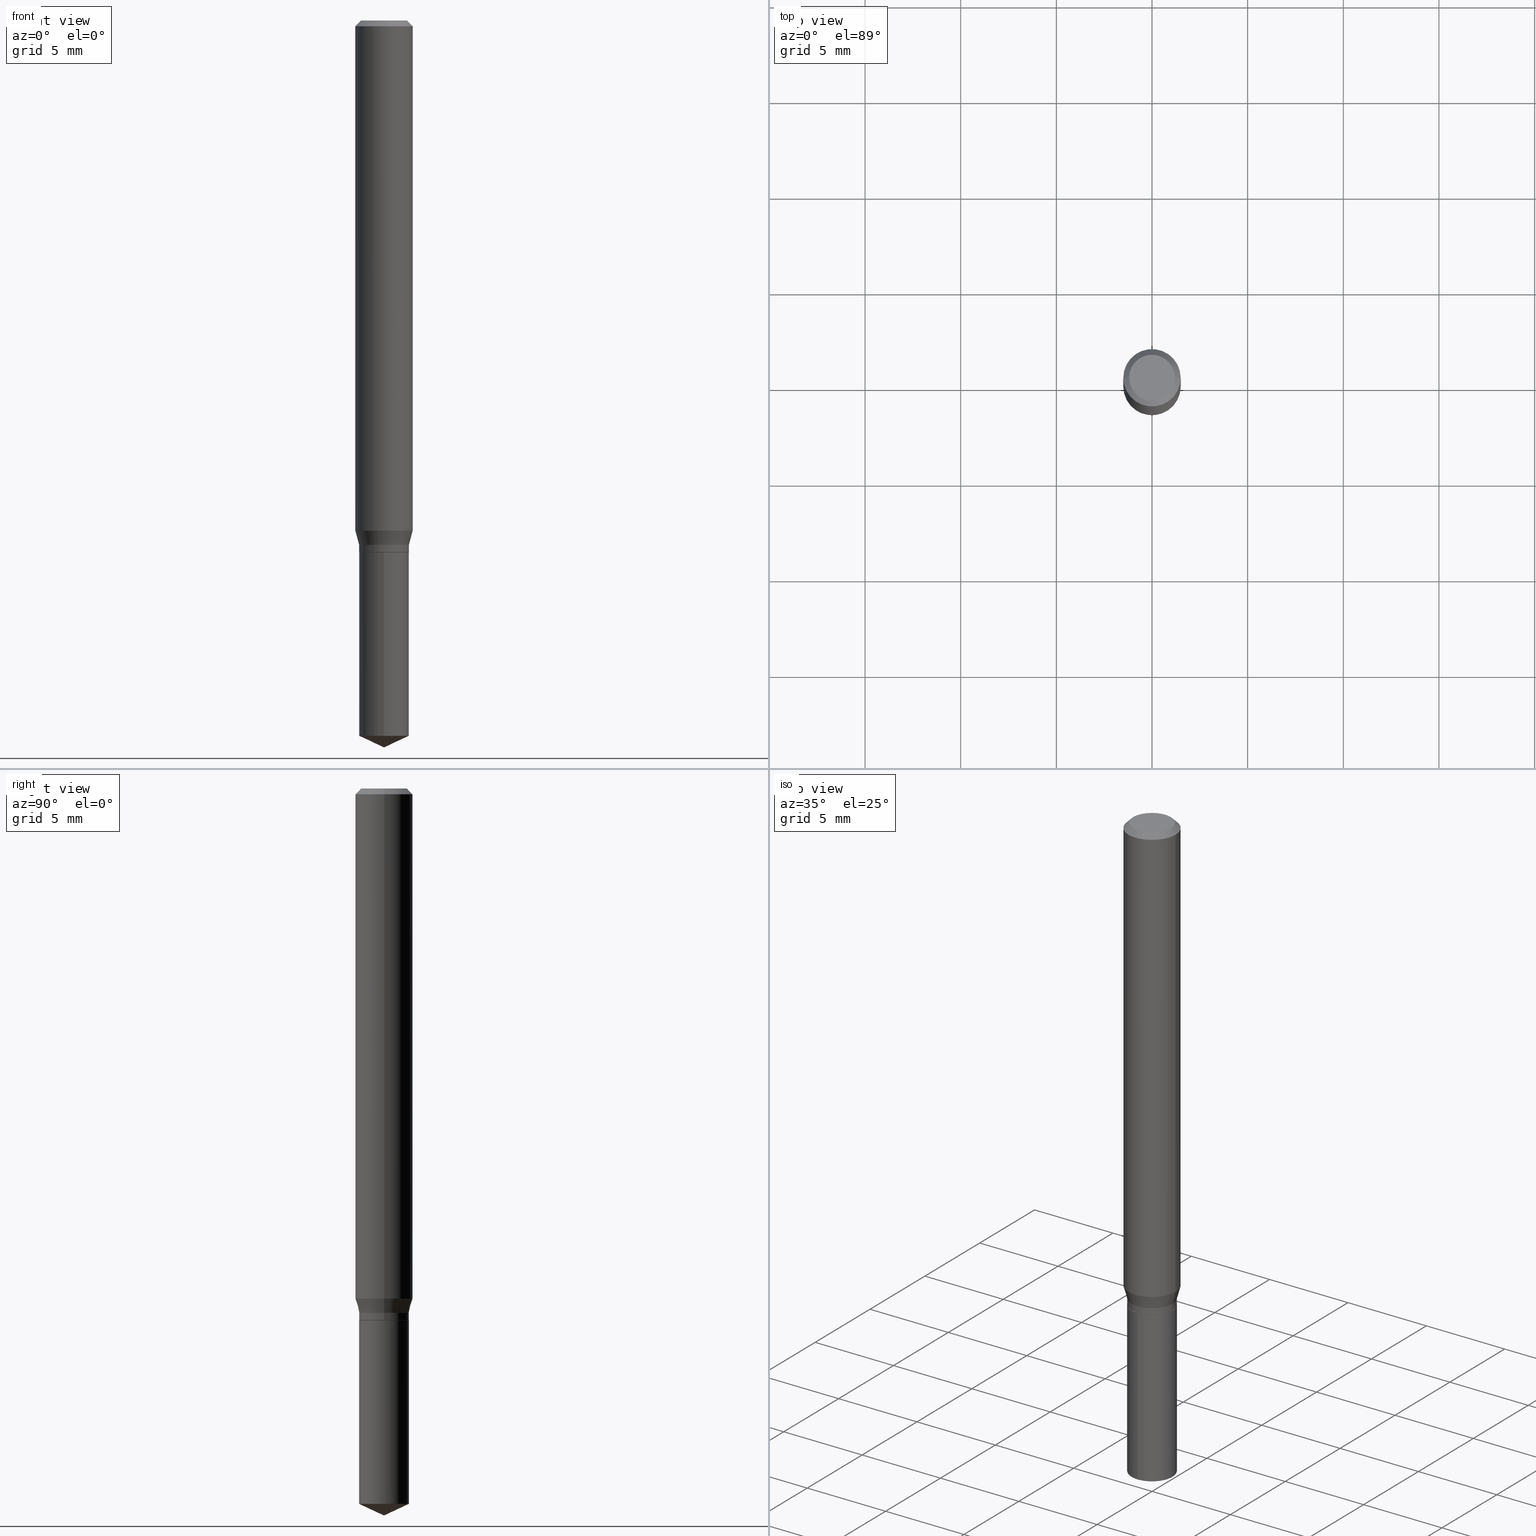
[diagram: canonical four-view strip — front | top / right | iso, engineering-drawing reading convention]
A machine part, canonical four-view strip (front | top / right | iso — engineering-drawing reading convention). The complete STEP part file that produces these views, byte-faithful:
ISO-10303-21;
HEADER;
FILE_DESCRIPTION (( 'STEP AP203' ),
    '1' );
FILE_NAME ('08393.STEP',
    '2024-04-24T14:51:42',
    ( '' ),
    ( '' ),
    'SwSTEP 2.0',
    'SolidWorks 2023',
    '' );
FILE_SCHEMA (( 'CONFIG_CONTROL_DESIGN' ));
ENDSEC;

DATA;
#1 = AXIS2_PLACEMENT_3D ( 'NONE', #146, #406, #62 ) ;
#2 = CARTESIAN_POINT ( 'NONE',  ( 3.600238699489957848E-29, -5.140306042266869931E-15, -1.472225047902464112 ) ) ;
#3 = ADVANCED_FACE ( 'NONE', ( #38 ), #162, .T. ) ;
#4 = VERTEX_POINT ( 'NONE', #310 ) ;
#5 = CC_DESIGN_PERSON_AND_ORGANIZATION_ASSIGNMENT ( #21, #297, ( #110 ) ) ;
#6 = CARTESIAN_POINT ( 'NONE',  ( 3.637978807092073044E-16, 0.05119999999999617912, -1.094500000000000028 ) ) ;
#7 = ORIENTED_EDGE ( 'NONE', *, *, #210, .F. ) ;
#8 = DIRECTION ( 'NONE',  ( 1.000000000000000000, -6.982962677686266711E-15, 0.000000000000000000 ) ) ;
#9 = VERTEX_POINT ( 'NONE', #40 ) ;
#10 = AXIS2_PLACEMENT_3D ( 'NONE', #322, #392, #201 ) ;
#11 = LINE ( 'NONE', #49, #438 ) ;
#12 = AXIS2_PLACEMENT_3D ( 'NONE', #2, #237, #156 ) ;
#13 = ORIENTED_EDGE ( 'NONE', *, *, #464, .T. ) ;
#14 = CARTESIAN_POINT ( 'NONE',  ( 0.000000000000000000, 0.000000000000000000, 0.000000000000000000 ) ) ;
#15 = DIRECTION ( 'NONE',  ( -2.445468806185136597E-29, 3.491481338843145583E-15, 1.000000000000000000 ) ) ;
#16 = CIRCLE ( 'NONE', #163, 0.05905000000000013710 ) ;
#17 = PERSON_AND_ORGANIZATION ( #311, #246 ) ;
#18 = VECTOR ( 'NONE', #442, 39.37007874015748143 ) ;
#19 = CARTESIAN_POINT ( 'NONE',  ( -0.05904999999999999832, -1.433726204142650015E-15, -0.01181000000000007044 ) ) ;
#20 = CIRCLE ( 'NONE', #305, 0.05120000000000000939 ) ;
#21 = PERSON_AND_ORGANIZATION ( #311, #246 ) ;
#22 = DIRECTION ( 'NONE',  ( -2.445468806185136877E-29, 3.491481338843145188E-15, 1.000000000000000000 ) ) ;
#23 = ORIENTED_EDGE ( 'NONE', *, *, #190, .T. ) ;
#24 = LINE ( 'NONE', #335, #293 ) ;
#25 = ORIENTED_EDGE ( 'NONE', *, *, #274, .T. ) ;
#26 = CARTESIAN_POINT ( 'NONE',  ( 2.675342873966538993E-29, -3.819680584694400481E-15, -1.093999999999999861 ) ) ;
#27 = CIRCLE ( 'NONE', #132, 0.05119999999999999551 ) ;
#28 = EDGE_LOOP ( 'NONE', ( #66, #149 ) ) ;
#29 = CIRCLE ( 'NONE', #102, 0.05119999999999999551 ) ;
#30 = CARTESIAN_POINT ( 'NONE',  ( -0.05119999999999999551, -3.429871168010848223E-15, -1.093999999999999861 ) ) ;
#31 = ORIENTED_EDGE ( 'NONE', *, *, #385, .T. ) ;
#32 = CARTESIAN_POINT ( 'NONE',  ( -0.05905000000000013710, -3.245793499139903371E-15, -1.049803401160583904 ) ) ;
#33 = VERTEX_POINT ( 'NONE', #126 ) ;
#34 = CARTESIAN_POINT ( 'NONE',  ( 2.888098660104663766E-31, -4.123439461173779647E-17, -0.01181000000000007044 ) ) ;
#35 = ORIENTED_EDGE ( 'NONE', *, *, #268, .F. ) ;
#36 = DIRECTION ( 'NONE',  ( 1.000000000000000000, -6.982962677686264344E-15, 0.000000000000000000 ) ) ;
#37 = EDGE_CURVE ( 'NONE', #191, #33, #200, .T. ) ;
#38 = FACE_OUTER_BOUND ( 'NONE', #281, .T. ) ;
#39 = DIRECTION ( 'NONE',  ( 1.000000000000000000, -6.982962677686265133E-15, 0.000000000000000000 ) ) ;
#40 = CARTESIAN_POINT ( 'NONE',  ( 3.658500592690254185E-29, -5.223841933215297403E-15, -1.496099999999999985 ) ) ;
#41 = DIRECTION ( 'NONE',  ( 1.000000000000000000, -6.982962677686263555E-15, 0.000000000000000000 ) ) ;
#42 = CARTESIAN_POINT ( 'NONE',  ( 8.265746106709734507E-48, -1.180129479067563789E-33, -3.380025165646692144E-19 ) ) ;
#43 = VECTOR ( 'NONE', #359, 39.37007874015748143 ) ;
#44 =( CONVERSION_BASED_UNIT ( 'INCH', #127 ) LENGTH_UNIT ( ) NAMED_UNIT ( #448 ) );
#45 = EDGE_CURVE ( 'NONE', #421, #33, #431, .T. ) ;
#46 = DIRECTION ( 'NONE',  ( 1.000000000000000000, -6.982962677686266711E-15, 4.876176775795936353E-29 ) ) ;
#47 = DIRECTION ( 'NONE',  ( 1.000000000000000000, -6.982962677686265133E-15, 0.000000000000000000 ) ) ;
#48 = ORIENTED_EDGE ( 'NONE', *, *, #453, .T. ) ;
#49 = CARTESIAN_POINT ( 'NONE',  ( -0.05905000000000006771, 4.195754854663396409E-16, -2.904631170795525045E-30 ) ) ;
#50 = APPROVAL ( #258, 'UNSPECIFIED' ) ;
#51 = EDGE_CURVE ( 'NONE', #471, #4, #27, .T. ) ;
#52 = DIRECTION ( 'NONE',  ( 1.000000000000000000, 0.000000000000000000, 0.000000000000000000 ) ) ;
#53 = VECTOR ( 'NONE', #135, 39.37007874015748143 ) ;
#54 = PERSON_AND_ORGANIZATION ( #311, #246 ) ;
#55 = EDGE_CURVE ( 'NONE', #165, #76, #122, .T. ) ;
#56 = SHAPE_DEFINITION_REPRESENTATION ( #178, #104 ) ;
#57 = CARTESIAN_POINT ( 'NONE',  ( 2.888098660104663766E-31, -4.123439461173779647E-17, -0.01181000000000007044 ) ) ;
#58 = DIRECTION ( 'NONE',  ( -1.000000000000000000, 6.982962677686266711E-15, 0.000000000000000000 ) ) ;
#59 = CIRCLE ( 'NONE', #124, 0.05904999999999999832 ) ;
#60 = ADVANCED_FACE ( 'NONE', ( #128 ), #315, .T. ) ;
#61 = DATE_TIME_ROLE ( 'creation_date' ) ;
#62 = DIRECTION ( 'NONE',  ( -6.982962677686265133E-15, -1.000000000000000000, 2.667820306312756424E-15 ) ) ;
#63 = EDGE_LOOP ( 'NONE', ( #388, #261, #23, #341 ) ) ;
#64 = CALENDAR_DATE ( 2024, 24, 4 ) ;
#65 = DIRECTION ( 'NONE',  ( -2.445358326776455790E-29, 3.491639551644474585E-15, 1.000000000000000000 ) ) ;
#66 = ORIENTED_EDGE ( 'NONE', *, *, #422, .T. ) ;
#67 = CARTESIAN_POINT ( 'NONE',  ( 3.600238699489957848E-29, -5.140306042266869931E-15, -1.472225047902464112 ) ) ;
#68 = UNCERTAINTY_MEASURE_WITH_UNIT (LENGTH_MEASURE( 1.000000000000000082E-05 ), #44, 'distance_accuracy_value', 'NONE');
#69 = ORIENTED_EDGE ( 'NONE', *, *, #55, .F. ) ;
#70 = DIRECTION ( 'NONE',  ( 6.439704144417030353E-15, 0.9063077870366521571, 0.4226182617406946673 ) ) ;
#71 = ORIENTED_EDGE ( 'NONE', *, *, #155, .F. ) ;
#72 = ADVANCED_FACE ( 'NONE', ( #432 ), #85, .T. ) ;
#73 = DIRECTION ( 'NONE',  ( -2.445468806185136597E-29, 3.491481338843145583E-15, 1.000000000000000000 ) ) ;
#74 = EDGE_LOOP ( 'NONE', ( #145, #354, #35, #7 ) ) ;
#75 = DIRECTION ( 'NONE',  ( -6.982962677686265133E-15, -1.000000000000000000, 2.667820306312756424E-15 ) ) ;
#76 = VERTEX_POINT ( 'NONE', #459 ) ;
#77 = CIRCLE ( 'NONE', #286, 0.05119999999999999551 ) ;
#78 = CARTESIAN_POINT ( 'NONE',  ( -3.575276890975101258E-16, -0.05120000000000383272, -1.094499999999999806 ) ) ;
#79 = APPLICATION_CONTEXT ( 'configuration controlled 3d designs of mechanical parts and assemblies' ) ;
#80 = LINE ( 'NONE', #324, #452 ) ;
#81 = DIRECTION ( 'NONE',  ( -6.982962677686266711E-15, -1.000000000000000000, 3.520397390770453475E-15 ) ) ;
#82 = ADVANCED_FACE ( 'NONE', ( #203 ), #233, .T. ) ;
#83 = DIRECTION ( 'NONE',  ( 1.000000000000000000, -6.982962677686265133E-15, 0.000000000000000000 ) ) ;
#84 = APPROVAL_PERSON_ORGANIZATION ( #17, #433, #105 ) ;
#85 = CYLINDRICAL_SURFACE ( 'NONE', #474, 0.05905000000000006771 ) ;
#86 = CLOSED_SHELL ( 'NONE', ( #266, #60, #313, #91, #265 ) ) ;
#87 = AXIS2_PLACEMENT_3D ( 'NONE', #215, #484, #98 ) ;
#88 = DIRECTION ( 'NONE',  ( -6.982962677686265133E-15, -1.000000000000000000, 2.667820306312756424E-15 ) ) ;
#89 = CC_DESIGN_PERSON_AND_ORGANIZATION_ASSIGNMENT ( #54, #409, ( #469 ) ) ;
#90 = CARTESIAN_POINT ( 'NONE',  ( 0.000000000000000000, 0.000000000000000000, 0.000000000000000000 ) ) ;
#91 = ADVANCED_FACE ( 'NONE', ( #129 ), #429, .T. ) ;
#92 = ORIENTED_EDGE ( 'NONE', *, *, #155, .T. ) ;
#93 = AXIS2_PLACEMENT_3D ( 'NONE', #344, #342, #458 ) ;
#94 = MANIFOLD_SOLID_BREP ( 'Body-Move/Copy2[2]', #152 ) ;
#95 = PERSON_AND_ORGANIZATION ( #311, #246 ) ;
#96 = DIRECTION ( 'NONE',  ( -6.328713451373374901E-15, -0.9063077870366492705, 0.4226182617407009956 ) ) ;
#97 = APPROVAL_DATE_TIME ( #250, #50 ) ;
#98 = DIRECTION ( 'NONE',  ( 1.000000000000000000, -6.982962677686263555E-15, 0.000000000000000000 ) ) ;
#99 = LOCAL_TIME ( 10, 51, 42.00000000000000000, #444 ) ;
#100 = DATE_AND_TIME ( #364, #301 ) ;
#101 = CARTESIAN_POINT ( 'NONE',  ( 2.676565608369631794E-29, -3.821426325363822773E-15, -1.094499999999999806 ) ) ;
#102 = AXIS2_PLACEMENT_3D ( 'NONE', #26, #180, #221 ) ;
#103 = ORIENTED_EDGE ( 'NONE', *, *, #414, .F. ) ;
#104 = ADVANCED_BREP_SHAPE_REPRESENTATION ( '08393', ( #254, #94, #353 ), #284 ) ;
#105 = APPROVAL_ROLE ( '' ) ;
#106 = DIRECTION ( 'NONE',  ( 1.000000000000000000, -6.982962677686263555E-15, 0.000000000000000000 ) ) ;
#107 = ORIENTED_EDGE ( 'NONE', *, *, #292, .F. ) ;
#108 = EDGE_CURVE ( 'NONE', #76, #191, #80, .T. ) ;
#109 = FACE_OUTER_BOUND ( 'NONE', #28, .T. ) ;
#110 = PRODUCT ( '08393', '08393', '', ( #209 ) ) ;
#111 = CC_DESIGN_APPROVAL ( #433, ( #222 ) ) ;
#112 = ORIENTED_EDGE ( 'NONE', *, *, #131, .T. ) ;
#113 = PLANE ( 'NONE',  #170 ) ;
#114 = ORIENTED_EDGE ( 'NONE', *, *, #167, .F. ) ;
#115 = VECTOR ( 'NONE', #445, 39.37007874015748143 ) ;
#116 = FACE_OUTER_BOUND ( 'NONE', #295, .T. ) ;
#117 = ORIENTED_EDGE ( 'NONE', *, *, #268, .T. ) ;
#118 = DIRECTION ( 'NONE',  ( 2.445468806185136597E-29, -3.491481338843145583E-15, -1.000000000000000000 ) ) ;
#119 = ORIENTED_EDGE ( 'NONE', *, *, #340, .T. ) ;
#120 = DIRECTION ( 'NONE',  ( -1.000000000000000000, 6.982962677686266711E-15, 0.000000000000000000 ) ) ;
#121 = EDGE_CURVE ( 'NONE', #165, #33, #217, .T. ) ;
#122 = CIRCLE ( 'NONE', #141, 0.04724000000000000421 ) ;
#123 = DIRECTION ( 'NONE',  ( -2.445468806185136597E-29, 3.491481338843145583E-15, 1.000000000000000000 ) ) ;
#124 = AXIS2_PLACEMENT_3D ( 'NONE', #456, #73, #8 ) ;
#125 = CARTESIAN_POINT ( 'NONE',  ( 2.675342873966538993E-29, -3.819680584694400481E-15, -1.093999999999999861 ) ) ;
#126 = CARTESIAN_POINT ( 'NONE',  ( 0.05904999999999999832, -4.535783407291118600E-16, -0.01181000000000007044 ) ) ;
#127 = LENGTH_MEASURE_WITH_UNIT ( LENGTH_MEASURE( 0.02539999999999999897 ), #245 );
#128 = FACE_OUTER_BOUND ( 'NONE', #487, .T. ) ;
#129 = FACE_OUTER_BOUND ( 'NONE', #415, .T. ) ;
#130 = DIRECTION ( 'NONE',  ( -2.445468806185136597E-29, 3.491481338843145583E-15, 1.000000000000000000 ) ) ;
#131 = EDGE_CURVE ( 'NONE', #271, #159, #192, .T. ) ;
#132 = AXIS2_PLACEMENT_3D ( 'NONE', #319, #15, #83 ) ;
#133 = PERSON_AND_ORGANIZATION_ROLE ( 'classification_officer' ) ;
#134 = AXIS2_PLACEMENT_3D ( 'NONE', #67, #338, #291 ) ;
#135 = DIRECTION ( 'NONE',  ( -2.445468806185136877E-29, 3.491481338843145188E-15, 1.000000000000000000 ) ) ;
#136 = ADVANCED_FACE ( 'NONE', ( #262 ), #202, .T. ) ;
#137 = CALENDAR_DATE ( 2024, 24, 4 ) ;
#138 = DIRECTION ( 'NONE',  ( 2.438088387897960049E-29, -3.491481338843145188E-15, -1.000000000000000000 ) ) ;
#139 = PERSON_AND_ORGANIZATION ( #311, #246 ) ;
#140 = CARTESIAN_POINT ( 'NONE',  ( -0.05119999999999999551, 3.637978807091712633E-16, -2.518494766210511577E-30 ) ) ;
#141 = AXIS2_PLACEMENT_3D ( 'NONE', #42, #123, #470 ) ;
#142 = DIRECTION ( 'NONE',  ( 2.445468806185136597E-29, -3.491481338843145583E-15, -1.000000000000000000 ) ) ;
#143 = AXIS2_PLACEMENT_3D ( 'NONE', #346, #193, #36 ) ;
#144 = VECTOR ( 'NONE', #413, 39.37007874015748143 ) ;
#145 = ORIENTED_EDGE ( 'NONE', *, *, #375, .T. ) ;
#146 = CARTESIAN_POINT ( 'NONE',  ( 2.676565608369631794E-29, -3.821426325363822773E-15, -1.094499999999999806 ) ) ;
#147 = ORIENTED_EDGE ( 'NONE', *, *, #455, .T. ) ;
#148 = DIRECTION ( 'NONE',  ( -2.445468806185136597E-29, 3.491481338843145583E-15, 1.000000000000000000 ) ) ;
#149 = ORIENTED_EDGE ( 'NONE', *, *, #55, .T. ) ;
#150 = LOCAL_TIME ( 10, 51, 42.00000000000000000, #480 ) ;
#151 = DIRECTION ( 'NONE',  ( -2.438088387897960049E-29, 3.491481338843145188E-15, 1.000000000000000000 ) ) ;
#152 = CLOSED_SHELL ( 'NONE', ( #161, #327, #72, #320, #3, #82, #476, #253, #136, #251, #399, #488 ) ) ;
#153 = ORIENTED_EDGE ( 'NONE', *, *, #219, .T. ) ;
#154 = AXIS2_PLACEMENT_3D ( 'NONE', #420, #386, #350 ) ;
#155 = EDGE_CURVE ( 'NONE', #373, #468, #378, .T. ) ;
#156 = DIRECTION ( 'NONE',  ( -6.982962677686265133E-15, -1.000000000000000000, 5.335640612625512847E-15 ) ) ;
#157 = ORIENTED_EDGE ( 'NONE', *, *, #45, .F. ) ;
#158 = DIRECTION ( 'NONE',  ( -0.2588190451025214611, 5.211531920934550253E-15, 0.9659258262890679791 ) ) ;
#159 = VERTEX_POINT ( 'NONE', #252 ) ;
#160 = CARTESIAN_POINT ( 'NONE',  ( 2.638905388754380459E-29, -3.767657512745638097E-15, -1.079099999999999948 ) ) ;
#161 = ADVANCED_FACE ( 'NONE', ( #182 ), #270, .T. ) ;
#162 = CYLINDRICAL_SURFACE ( 'NONE', #303, 0.05119999999999999551 ) ;
#163 = AXIS2_PLACEMENT_3D ( 'NONE', #389, #466, #436 ) ;
#164 = CARTESIAN_POINT ( 'NONE',  ( -0.05119999999999999551, -3.429871168010848223E-15, -1.079099999999999948 ) ) ;
#165 = VERTEX_POINT ( 'NONE', #371 ) ;
#166 = APPLICATION_PROTOCOL_DEFINITION ( 'international standard', 'config_control_design', 1994, #204 ) ;
#167 = EDGE_CURVE ( 'NONE', #159, #449, #24, .T. ) ;
#168 = ORIENTED_EDGE ( 'NONE', *, *, #190, .F. ) ;
#169 = CARTESIAN_POINT ( 'NONE',  ( 0.05119999999999999551, -3.575276890975368485E-16, 2.496602509207519033E-30 ) ) ;
#170 = AXIS2_PLACEMENT_3D ( 'NONE', #489, #151, #275 ) ;
#171 = EDGE_CURVE ( 'NONE', #373, #384, #177, .T. ) ;
#172 = PERSON_AND_ORGANIZATION_ROLE ( 'design_supplier' ) ;
#173 = LOCAL_TIME ( 10, 51, 42.00000000000000000, #249 ) ;
#174 = EDGE_CURVE ( 'NONE', #194, #449, #330, .T. ) ;
#175 = AXIS2_PLACEMENT_3D ( 'NONE', #351, #356, #278 ) ;
#176 = DATE_AND_TIME ( #137, #150 ) ;
#177 = LINE ( 'NONE', #481, #362 ) ;
#178 = PRODUCT_DEFINITION_SHAPE ( 'NONE', 'NONE',  #469 ) ;
#179 = COORDINATED_UNIVERSAL_TIME_OFFSET ( 5, 0, .BEHIND. ) ;
#180 = DIRECTION ( 'NONE',  ( -2.445468806185136597E-29, 3.491481338843145583E-15, 1.000000000000000000 ) ) ;
#181 = APPROVAL_ROLE ( '' ) ;
#182 = FACE_OUTER_BOUND ( 'NONE', #74, .T. ) ;
#183 = ORIENTED_EDGE ( 'NONE', *, *, #464, .F. ) ;
#184 = CARTESIAN_POINT ( 'NONE',  ( 0.05904999999999999832, -4.463468013801466955E-16, -0.01181000000000007044 ) ) ;
#185 = CONICAL_SURFACE ( 'NONE', #361, 84.42940631927434936, 1.134464013796316006 ) ;
#186 = EDGE_LOOP ( 'NONE', ( #240, #92, #318, #397 ) ) ;
#187 = CARTESIAN_POINT ( 'NONE',  ( -0.05119999999999999551, -3.403859632036467031E-15, -1.079099999999999948 ) ) ;
#188 = ORIENTED_EDGE ( 'NONE', *, *, #414, .T. ) ;
#189 = FACE_OUTER_BOUND ( 'NONE', #267, .T. ) ;
#190 = EDGE_CURVE ( 'NONE', #483, #4, #379, .T. ) ;
#191 = VERTEX_POINT ( 'NONE', #19 ) ;
#192 = CIRCLE ( 'NONE', #134, 0.05120000000000000939 ) ;
#193 = DIRECTION ( 'NONE',  ( -2.445468806185136597E-29, 3.491481338843145583E-15, 1.000000000000000000 ) ) ;
#194 = VERTEX_POINT ( 'NONE', #472 ) ;
#195 = DIRECTION ( 'NONE',  ( -2.445358326776455510E-29, 3.491639551644474585E-15, 1.000000000000000000 ) ) ;
#196 = CARTESIAN_POINT ( 'NONE',  ( 0.05905000000000006771, -4.123439461173745257E-16, 2.879382386107503723E-30 ) ) ;
#197 = CYLINDRICAL_SURFACE ( 'NONE', #434, 0.05120000000000000939 ) ;
#198 = EDGE_CURVE ( 'NONE', #9, #271, #298, .T. ) ;
#199 = DIRECTION ( 'NONE',  ( -2.445468806185136597E-29, 3.491481338843145583E-15, 1.000000000000000000 ) ) ;
#200 = CIRCLE ( 'NONE', #437, 0.05904999999999999832 ) ;
#201 = DIRECTION ( 'NONE',  ( -6.982962677686266711E-15, -1.000000000000000000, 3.520397390770453475E-15 ) ) ;
#202 = CONICAL_SURFACE ( 'NONE', #475, 0.05904999999999999832, 0.7853981633974452814 ) ;
#203 = FACE_OUTER_BOUND ( 'NONE', #63, .T. ) ;
#204 = APPLICATION_CONTEXT ( 'configuration controlled 3d designs of mechanical parts and assemblies' ) ;
#205 = CARTESIAN_POINT ( 'NONE',  ( 2.676565608369631794E-29, -3.821426325363822773E-15, -1.094499999999999806 ) ) ;
#206 = EDGE_LOOP ( 'NONE', ( #69, #457, #25, #343 ) ) ;
#207 = CIRCLE ( 'NONE', #12, 0.05120000000000000939 ) ;
#208 = ORIENTED_EDGE ( 'NONE', *, *, #108, .T. ) ;
#209 = MECHANICAL_CONTEXT ( 'NONE', #204, 'mechanical' ) ;
#210 = EDGE_CURVE ( 'NONE', #468, #483, #447, .T. ) ;
#211 = APPLICATION_PROTOCOL_DEFINITION ( 'international standard', 'config_control_design', 1994, #79 ) ;
#212 = LINE ( 'NONE', #332, #144 ) ;
#213 = PRODUCT_RELATED_PRODUCT_CATEGORY ( 'detail', '', ( #110 ) ) ;
#214 = CIRCLE ( 'NONE', #282, 0.05119999999999999551 ) ;
#215 = CARTESIAN_POINT ( 'NONE',  ( 2.676565608369631794E-29, -3.821426325363822773E-15, -1.094499999999999806 ) ) ;
#216 = ORIENTED_EDGE ( 'NONE', *, *, #453, .F. ) ;
#217 = LINE ( 'NONE', #184, #18 ) ;
#218 = ORIENTED_EDGE ( 'NONE', *, *, #325, .T. ) ;
#219 = EDGE_CURVE ( 'NONE', #4, #421, #212, .T. ) ;
#220 = COORDINATED_UNIVERSAL_TIME_OFFSET ( 5, 0, .BEHIND. ) ;
#221 = DIRECTION ( 'NONE',  ( 1.000000000000000000, -6.982962677686265133E-15, 0.000000000000000000 ) ) ;
#222 = PRODUCT_DEFINITION_FORMATION_WITH_SPECIFIED_SOURCE ( 'ANY', '', #110, .NOT_KNOWN. ) ;
#223 = ORIENTED_EDGE ( 'NONE', *, *, #37, .F. ) ;
#224 = DIRECTION ( 'NONE',  ( -0.7071067811865173747, 7.493145998870245297E-15, 0.7071067811865776598 ) ) ;
#225 = AXIS2_PLACEMENT_3D ( 'NONE', #160, #425, #462 ) ;
#226 = EDGE_LOOP ( 'NONE', ( #424, #443, #208, #454 ) ) ;
#227 = DIRECTION ( 'NONE',  ( 6.982962677686265922E-15, 1.000000000000000000, -3.491639551644474585E-15 ) ) ;
#228 = EDGE_CURVE ( 'NONE', #384, #483, #29, .T. ) ;
#229 = EDGE_LOOP ( 'NONE', ( #183, #263, #382, #223 ) ) ;
#230 = FACE_OUTER_BOUND ( 'NONE', #206, .T. ) ;
#231 = EDGE_LOOP ( 'NONE', ( #407, #188 ) ) ;
#232 = CARTESIAN_POINT ( 'NONE',  ( 0.05905000000000013710, -4.077712930723618179E-15, -1.049803401160583904 ) ) ;
#233 = CYLINDRICAL_SURFACE ( 'NONE', #175, 0.05119999999999999551 ) ;
#234 = VECTOR ( 'NONE', #235, 39.37007874015748143 ) ;
#235 = DIRECTION ( 'NONE',  ( -2.445358326776455790E-29, 3.491639551644474585E-15, 1.000000000000000000 ) ) ;
#236 = ORIENTED_EDGE ( 'NONE', *, *, #461, .F. ) ;
#237 = DIRECTION ( 'NONE',  ( -2.445358326776455510E-29, 3.491639551644474585E-15, 1.000000000000000000 ) ) ;
#238 = DIRECTION ( 'NONE',  ( -2.445468806185136597E-29, 3.491481338843145583E-15, 1.000000000000000000 ) ) ;
#239 = AXIS2_PLACEMENT_3D ( 'NONE', #426, #435, #88 ) ;
#240 = ORIENTED_EDGE ( 'NONE', *, *, #171, .F. ) ;
#241 = VECTOR ( 'NONE', #158, 39.37007874015748143 ) ;
#242 = CARTESIAN_POINT ( 'NONE',  ( 0.05070000000000000201, -4.175462533122516319E-15, -1.094499999999999806 ) ) ;
#243 = CONICAL_SURFACE ( 'NONE', #296, 0.05119999999999999551, 0.2617993877991501850 ) ;
#244 = CARTESIAN_POINT ( 'NONE',  ( 2.888098660104663766E-31, -4.123439461173779647E-17, -0.01181000000000007044 ) ) ;
#245 =( LENGTH_UNIT ( ) NAMED_UNIT ( * ) SI_UNIT ( $, .METRE. ) );
#246 = ORGANIZATION ( 'UNSPECIFIED', 'UNSPECIFIED', '' ) ;
#247 = EDGE_CURVE ( 'NONE', #384, #471, #376, .T. ) ;
#248 = CONICAL_SURFACE ( 'NONE', #225, 0.05119999999999999551, 0.2617993877991501850 ) ;
#249 = COORDINATED_UNIVERSAL_TIME_OFFSET ( 5, 0, .BEHIND. ) ;
#250 = DATE_AND_TIME ( #405, #173 ) ;
#251 = ADVANCED_FACE ( 'NONE', ( #109 ), #477, .F. ) ;
#252 = CARTESIAN_POINT ( 'NONE',  ( 3.637978807092074523E-16, 0.05119999999999487461, -1.472225047902464334 ) ) ;
#253 = ADVANCED_FACE ( 'NONE', ( #264 ), #439, .T. ) ;
#254 = MANIFOLD_SOLID_BREP ( 'Body-Move/Copy2[1]', #86 ) ;
#255 = PERSON_AND_ORGANIZATION ( #311, #246 ) ;
#256 = DIRECTION ( 'NONE',  ( -2.445468806185136597E-29, 3.491481338843145583E-15, 1.000000000000000000 ) ) ;
#257 = ORIENTED_EDGE ( 'NONE', *, *, #375, .F. ) ;
#258 = APPROVAL_STATUS ( 'not_yet_approved' ) ;
#259 = AXIS2_PLACEMENT_3D ( 'NONE', #365, #256, #106 ) ;
#260 = DIRECTION ( 'NONE',  ( 1.000000000000000000, -6.982962677686266711E-15, 4.876176775795936353E-29 ) ) ;
#261 = ORIENTED_EDGE ( 'NONE', *, *, #228, .T. ) ;
#262 = FACE_OUTER_BOUND ( 'NONE', #226, .T. ) ;
#263 = ORIENTED_EDGE ( 'NONE', *, *, #461, .T. ) ;
#264 = FACE_OUTER_BOUND ( 'NONE', #229, .T. ) ;
#265 = ADVANCED_FACE ( 'NONE', ( #334 ), #479, .F. ) ;
#266 = ADVANCED_FACE ( 'NONE', ( #116 ), #197, .T. ) ;
#267 = EDGE_LOOP ( 'NONE', ( #107, #377, #355 ) ) ;
#268 = EDGE_CURVE ( 'NONE', #483, #384, #77, .T. ) ;
#269 = DIRECTION ( 'NONE',  ( -6.982962677686265133E-15, -1.000000000000000000, 2.667820306312756424E-15 ) ) ;
#270 = CONICAL_SURFACE ( 'NONE', #87, 0.05070000000000000201, 0.7853981633974056464 ) ;
#271 = VERTEX_POINT ( 'NONE', #279 ) ;
#272 = CARTESIAN_POINT ( 'NONE',  ( 2.676565608369631794E-29, -3.821426325363822773E-15, -1.094499999999999806 ) ) ;
#273 = ORIENTED_EDGE ( 'NONE', *, *, #198, .F. ) ;
#274 = EDGE_CURVE ( 'NONE', #33, #191, #59, .T. ) ;
#275 = DIRECTION ( 'NONE',  ( 1.000000000000000000, -6.982962677686265922E-15, 4.876176775795935793E-29 ) ) ;
#276 = CARTESIAN_POINT ( 'NONE',  ( 0.000000000000000000, 0.000000000000000000, 0.000000000000000000 ) ) ;
#277 = DIRECTION ( 'NONE',  ( -2.445468806185136597E-29, 3.491481338843145583E-15, 1.000000000000000000 ) ) ;
#278 = DIRECTION ( 'NONE',  ( 1.000000000000000000, -6.982962677686267499E-15, 4.876176775795935793E-29 ) ) ;
#279 = CARTESIAN_POINT ( 'NONE',  ( -3.575276890975009060E-16, -0.05120000000000516499, -1.472225047902463890 ) ) ;
#280 = EDGE_LOOP ( 'NONE', ( #257, #71 ) ) ;
#281 = EDGE_LOOP ( 'NONE', ( #117, #302, #216, #168 ) ) ;
#282 = AXIS2_PLACEMENT_3D ( 'NONE', #312, #277, #39 ) ;
#283 = CC_DESIGN_PERSON_AND_ORGANIZATION_ASSIGNMENT ( #139, #133, ( #450 ) ) ;
#284 =( GEOMETRIC_REPRESENTATION_CONTEXT ( 3 ) GLOBAL_UNCERTAINTY_ASSIGNED_CONTEXT ( ( #68 ) ) GLOBAL_UNIT_ASSIGNED_CONTEXT ( ( #44, #360, #321 ) ) REPRESENTATION_CONTEXT ( 'NONE', 'WORKASPACE' ) );
#285 = CARTESIAN_POINT ( 'NONE',  ( 2.638905388754380459E-29, -3.767657512745638097E-15, -1.079099999999999948 ) ) ;
#286 = AXIS2_PLACEMENT_3D ( 'NONE', #125, #148, #383 ) ;
#287 = APPROVAL_ROLE ( '' ) ;
#288 = DIRECTION ( 'NONE',  ( -1.000000000000000000, 6.982962677686265922E-15, -4.876176775795935793E-29 ) ) ;
#289 = CARTESIAN_POINT ( 'NONE',  ( 0.000000000000000000, 0.000000000000000000, 0.000000000000000000 ) ) ;
#290 = CALENDAR_DATE ( 2024, 24, 4 ) ;
#291 = DIRECTION ( 'NONE',  ( -6.982962677686265133E-15, -1.000000000000000000, 5.335640612625512847E-15 ) ) ;
#292 = EDGE_CURVE ( 'NONE', #9, #159, #308, .T. ) ;
#293 = VECTOR ( 'NONE', #65, 39.37007874015748143 ) ;
#294 = CARTESIAN_POINT ( 'NONE',  ( 3.658500592690254185E-29, -5.223841933215297403E-15, -1.496099999999999985 ) ) ;
#295 = EDGE_LOOP ( 'NONE', ( #112, #345, #485, #490 ) ) ;
#296 = AXIS2_PLACEMENT_3D ( 'NONE', #285, #130, #47 ) ;
#297 = PERSON_AND_ORGANIZATION_ROLE ( 'design_owner' ) ;
#298 = LINE ( 'NONE', #294, #337 ) ;
#299 = ORIENTED_EDGE ( 'NONE', *, *, #131, .F. ) ;
#300 = CARTESIAN_POINT ( 'NONE',  ( 2.676565608369631794E-29, -3.821426325363822773E-15, -1.094499999999999806 ) ) ;
#301 = LOCAL_TIME ( 10, 51, 42.00000000000000000, #179 ) ;
#302 = ORIENTED_EDGE ( 'NONE', *, *, #247, .T. ) ;
#303 = AXIS2_PLACEMENT_3D ( 'NONE', #276, #238, #314 ) ;
#304 = FACE_OUTER_BOUND ( 'NONE', #402, .T. ) ;
#305 = AXIS2_PLACEMENT_3D ( 'NONE', #300, #195, #75 ) ;
#306 = CC_DESIGN_DATE_AND_TIME_ASSIGNMENT ( #441, #367, ( #450 ) ) ;
#307 = ORIENTED_EDGE ( 'NONE', *, *, #325, .F. ) ;
#308 = LINE ( 'NONE', #430, #401 ) ;
#309 = AXIS2_PLACEMENT_3D ( 'NONE', #205, #357, #41 ) ;
#310 = CARTESIAN_POINT ( 'NONE',  ( 0.05119999999999999551, -4.125185201843175438E-15, -1.079099999999999948 ) ) ;
#311 = PERSON ( 'UNSPECIFIED', 'UNSPECIFIED', 'UNSPECIFIED', ('UNSPECIFIED'), ('UNSPECIFIED'), ('UNSPECIFIED') ) ;
#312 = CARTESIAN_POINT ( 'NONE',  ( 2.638905388754380459E-29, -3.767657512745638097E-15, -1.079099999999999948 ) ) ;
#313 = ADVANCED_FACE ( 'NONE', ( #189 ), #185, .T. ) ;
#314 = DIRECTION ( 'NONE',  ( 1.000000000000000000, -6.982962677686267499E-15, 4.876176775795935793E-29 ) ) ;
#315 = CONICAL_SURFACE ( 'NONE', #10, 84.42940631927434936, 1.134464013796316006 ) ;
#316 = LINE ( 'NONE', #187, #241 ) ;
#317 = AXIS2_PLACEMENT_3D ( 'NONE', #368, #138, #288 ) ;
#318 = ORIENTED_EDGE ( 'NONE', *, *, #210, .T. ) ;
#319 = CARTESIAN_POINT ( 'NONE',  ( 2.638905388754380459E-29, -3.767657512745638097E-15, -1.079099999999999948 ) ) ;
#320 = ADVANCED_FACE ( 'NONE', ( #304 ), #248, .T. ) ;
#321 =( NAMED_UNIT ( * ) SI_UNIT ( $, .STERADIAN. ) SOLID_ANGLE_UNIT ( ) );
#322 = CARTESIAN_POINT ( 'NONE',  ( -9.261532836068574158E-28, 1.322424553111868898E-13, 37.87397874015748300 ) ) ;
#323 = FACE_OUTER_BOUND ( 'NONE', #336, .T. ) ;
#324 = CARTESIAN_POINT ( 'NONE',  ( -0.05904999999999999832, 3.711095515056362547E-16, -0.01181000000000007044 ) ) ;
#325 = EDGE_CURVE ( 'NONE', #421, #369, #347, .T. ) ;
#326 = CC_DESIGN_APPROVAL ( #50, ( #450 ) ) ;
#327 = ADVANCED_FACE ( 'NONE', ( #230 ), #387, .T. ) ;
#328 = CARTESIAN_POINT ( 'NONE',  ( 0.05119999999999999551, -4.177208273791937822E-15, -1.093999999999999861 ) ) ;
#329 = PERSON_AND_ORGANIZATION ( #311, #246 ) ;
#330 = CIRCLE ( 'NONE', #1, 0.05120000000000000939 ) ;
#331 = APPROVAL_STATUS ( 'not_yet_approved' ) ;
#332 = CARTESIAN_POINT ( 'NONE',  ( 0.05119999999999999551, -4.125185201843175438E-15, -1.079099999999999948 ) ) ;
#333 = APPROVAL_DATE_TIME ( #176, #433 ) ;
#334 = FACE_OUTER_BOUND ( 'NONE', #231, .T. ) ;
#335 = CARTESIAN_POINT ( 'NONE',  ( 3.637978807091980353E-16, 0.05119999999999617912, -1.094500000000000028 ) ) ;
#336 = EDGE_LOOP ( 'NONE', ( #417, #390, #153, #236 ) ) ;
#337 = VECTOR ( 'NONE', #96, 39.37007874015748143 ) ;
#338 = DIRECTION ( 'NONE',  ( -2.445358326776455510E-29, 3.491639551644474585E-15, 1.000000000000000000 ) ) ;
#339 = DESIGN_CONTEXT ( 'detailed design', #79, 'design' ) ;
#340 = EDGE_CURVE ( 'NONE', #159, #271, #207, .T. ) ;
#341 = ORIENTED_EDGE ( 'NONE', *, *, #51, .F. ) ;
#342 = DIRECTION ( 'NONE',  ( -2.445468806185136597E-29, 3.491481338843145583E-15, 1.000000000000000000 ) ) ;
#343 = ORIENTED_EDGE ( 'NONE', *, *, #108, .F. ) ;
#344 = CARTESIAN_POINT ( 'NONE',  ( 2.676565608369631794E-29, -3.821426325363822773E-15, -1.094499999999999806 ) ) ;
#345 = ORIENTED_EDGE ( 'NONE', *, *, #167, .T. ) ;
#346 = CARTESIAN_POINT ( 'NONE',  ( 2.567261470165268831E-29, -3.665368984606243258E-15, -1.049803401160583904 ) ) ;
#347 = CIRCLE ( 'NONE', #143, 0.05905000000000013710 ) ;
#348 = ORIENTED_EDGE ( 'NONE', *, *, #274, .F. ) ;
#349 = CONICAL_SURFACE ( 'NONE', #309, 0.05070000000000000201, 0.7853981633974056464 ) ;
#350 = DIRECTION ( 'NONE',  ( 1.000000000000000000, -6.982962677686266711E-15, 4.876185090822587894E-29 ) ) ;
#351 = CARTESIAN_POINT ( 'NONE',  ( 0.000000000000000000, 0.000000000000000000, 0.000000000000000000 ) ) ;
#352 = CARTESIAN_POINT ( 'NONE',  ( -0.05070000000000000201, -3.458531931159340616E-15, -1.094499999999999806 ) ) ;
#353 = AXIS2_PLACEMENT_3D ( 'NONE', #90, #400, #52 ) ;
#354 = ORIENTED_EDGE ( 'NONE', *, *, #171, .T. ) ;
#355 = ORIENTED_EDGE ( 'NONE', *, *, #340, .F. ) ;
#356 = DIRECTION ( 'NONE',  ( -2.445468806185136597E-29, 3.491481338843145583E-15, 1.000000000000000000 ) ) ;
#357 = DIRECTION ( 'NONE',  ( -2.445468806185136597E-29, 3.491481338843145583E-15, 1.000000000000000000 ) ) ;
#358 = APPROVAL_PERSON_ORGANIZATION ( #95, #372, #181 ) ;
#359 = DIRECTION ( 'NONE',  ( -2.445468806185136877E-29, 3.491481338843145188E-15, 1.000000000000000000 ) ) ;
#360 =( NAMED_UNIT ( * ) PLANE_ANGLE_UNIT ( ) SI_UNIT ( $, .RADIAN. ) );
#361 = AXIS2_PLACEMENT_3D ( 'NONE', #423, #381, #81 ) ;
#362 = VECTOR ( 'NONE', #224, 39.37007874015748143 ) ;
#363 = DATE_AND_TIME ( #64, #99 ) ;
#364 = CALENDAR_DATE ( 2024, 24, 4 ) ;
#365 = CARTESIAN_POINT ( 'NONE',  ( 2.676565608369631794E-29, -3.821426325363822773E-15, -1.094499999999999806 ) ) ;
#366 = CIRCLE ( 'NONE', #154, 0.04724000000000000421 ) ;
#367 = DATE_TIME_ROLE ( 'classification_date' ) ;
#368 = CARTESIAN_POINT ( 'NONE',  ( 4.132873053354867254E-48, -5.900647395337818946E-34, -1.690012582823346072E-19 ) ) ;
#369 = VERTEX_POINT ( 'NONE', #32 ) ;
#370 = APPROVAL_STATUS ( 'not_yet_approved' ) ;
#371 = CARTESIAN_POINT ( 'NONE',  ( 0.04724000000000000421, -3.852183633974369345E-16, -3.380025165621689721E-19 ) ) ;
#372 = APPROVAL ( #331, 'UNSPECIFIED' ) ;
#373 = VERTEX_POINT ( 'NONE', #352 ) ;
#374 = APPROVAL_DATE_TIME ( #100, #372 ) ;
#375 = EDGE_CURVE ( 'NONE', #468, #373, #419, .T. ) ;
#376 = LINE ( 'NONE', #140, #53 ) ;
#377 = ORIENTED_EDGE ( 'NONE', *, *, #198, .T. ) ;
#378 = CIRCLE ( 'NONE', #259, 0.05070000000000000201 ) ;
#379 = LINE ( 'NONE', #169, #408 ) ;
#380 = ORIENTED_EDGE ( 'NONE', *, *, #292, .T. ) ;
#381 = DIRECTION ( 'NONE',  ( -2.445358326776455510E-29, 3.491639551644474585E-15, 1.000000000000000000 ) ) ;
#382 = ORIENTED_EDGE ( 'NONE', *, *, #45, .T. ) ;
#383 = DIRECTION ( 'NONE',  ( 1.000000000000000000, -6.982962677686265133E-15, 0.000000000000000000 ) ) ;
#384 = VERTEX_POINT ( 'NONE', #30 ) ;
#385 = EDGE_CURVE ( 'NONE', #471, #369, #316, .T. ) ;
#386 = DIRECTION ( 'NONE',  ( -2.445468806185136597E-29, 3.491481338843145583E-15, 1.000000000000000000 ) ) ;
#387 = CONICAL_SURFACE ( 'NONE', #428, 0.05904999999999999832, 0.7853981633974452814 ) ;
#388 = ORIENTED_EDGE ( 'NONE', *, *, #247, .F. ) ;
#389 = CARTESIAN_POINT ( 'NONE',  ( 2.567261470165268831E-29, -3.665368984606243258E-15, -1.049803401160583904 ) ) ;
#390 = ORIENTED_EDGE ( 'NONE', *, *, #51, .T. ) ;
#391 = FACE_OUTER_BOUND ( 'NONE', #186, .T. ) ;
#392 = DIRECTION ( 'NONE',  ( -2.445358326776455510E-29, 3.491639551644474585E-15, 1.000000000000000000 ) ) ;
#393 = DIRECTION ( 'NONE',  ( -2.445468806185136877E-29, 3.491481338843145188E-15, 1.000000000000000000 ) ) ;
#394 = AXIS2_PLACEMENT_3D ( 'NONE', #101, #410, #227 ) ;
#395 = DIRECTION ( 'NONE',  ( -2.445468806185136597E-29, 3.491481338843145583E-15, 1.000000000000000000 ) ) ;
#396 = CC_DESIGN_PERSON_AND_ORGANIZATION_ASSIGNMENT ( #403, #478, ( #222 ) ) ;
#397 = ORIENTED_EDGE ( 'NONE', *, *, #228, .F. ) ;
#398 = LOCAL_TIME ( 10, 51, 42.00000000000000000, #220 ) ;
#399 = ADVANCED_FACE ( 'NONE', ( #486 ), #113, .F. ) ;
#400 = DIRECTION ( 'NONE',  ( 0.000000000000000000, 0.000000000000000000, 1.000000000000000000 ) ) ;
#401 = VECTOR ( 'NONE', #70, 39.37007874015748854 ) ;
#402 = EDGE_LOOP ( 'NONE', ( #48, #31, #307, #446 ) ) ;
#403 = PERSON_AND_ORGANIZATION ( #311, #246 ) ;
#404 = DIRECTION ( 'NONE',  ( -0.7071067811865453523, 2.468850131082234184E-15, -0.7071067811865496822 ) ) ;
#405 = CALENDAR_DATE ( 2024, 24, 4 ) ;
#406 = DIRECTION ( 'NONE',  ( -2.445358326776455510E-29, 3.491639551644474585E-15, 1.000000000000000000 ) ) ;
#407 = ORIENTED_EDGE ( 'NONE', *, *, #174, .T. ) ;
#408 = VECTOR ( 'NONE', #22, 39.37007874015748143 ) ;
#409 = PERSON_AND_ORGANIZATION_ROLE ( 'creator' ) ;
#410 = DIRECTION ( 'NONE',  ( 2.445358326776454949E-29, -3.491639551644474585E-15, -1.000000000000000000 ) ) ;
#411 = CC_DESIGN_DATE_AND_TIME_ASSIGNMENT ( #363, #61, ( #469 ) ) ;
#412 = EDGE_LOOP ( 'NONE', ( #218, #13, #348, #157 ) ) ;
#413 = DIRECTION ( 'NONE',  ( 0.2588190451025214611, 1.565188264969620982E-15, 0.9659258262890679791 ) ) ;
#414 = EDGE_CURVE ( 'NONE', #449, #194, #20, .T. ) ;
#415 = EDGE_LOOP ( 'NONE', ( #114, #119, #147, #103 ) ) ;
#416 = CARTESIAN_POINT ( 'NONE',  ( 0.05070000000000000201, -4.175462533122516319E-15, -1.094499999999999806 ) ) ;
#417 = ORIENTED_EDGE ( 'NONE', *, *, #385, .F. ) ;
#418 = CC_DESIGN_SECURITY_CLASSIFICATION ( #450, ( #222 ) ) ;
#419 = CIRCLE ( 'NONE', #93, 0.05070000000000000201 ) ;
#420 = CARTESIAN_POINT ( 'NONE',  ( 8.265746106709734507E-48, -1.180129479067563789E-33, -3.380025165646692144E-19 ) ) ;
#421 = VERTEX_POINT ( 'NONE', #232 ) ;
#422 = EDGE_CURVE ( 'NONE', #76, #165, #366, .T. ) ;
#423 = CARTESIAN_POINT ( 'NONE',  ( -9.261532836068574158E-28, 1.322424553111868898E-13, 37.87397874015748300 ) ) ;
#424 = ORIENTED_EDGE ( 'NONE', *, *, #121, .F. ) ;
#425 = DIRECTION ( 'NONE',  ( -2.445468806185136597E-29, 3.491481338843145583E-15, 1.000000000000000000 ) ) ;
#426 = CARTESIAN_POINT ( 'NONE',  ( 2.676565608369631794E-29, -3.821426325363822773E-15, -1.094499999999999806 ) ) ;
#427 = LINE ( 'NONE', #78, #234 ) ;
#428 = AXIS2_PLACEMENT_3D ( 'NONE', #34, #118, #120 ) ;
#429 = CYLINDRICAL_SURFACE ( 'NONE', #239, 0.05120000000000000939 ) ;
#430 = CARTESIAN_POINT ( 'NONE',  ( 3.658744552762151624E-29, -5.223495605393188568E-15, -1.496099999999999985 ) ) ;
#431 = LINE ( 'NONE', #196, #43 ) ;
#432 = FACE_OUTER_BOUND ( 'NONE', #412, .T. ) ;
#433 = APPROVAL ( #370, 'UNSPECIFIED' ) ;
#434 = AXIS2_PLACEMENT_3D ( 'NONE', #272, #451, #269 ) ;
#435 = DIRECTION ( 'NONE',  ( -2.445358326776455510E-29, 3.491639551644474585E-15, 1.000000000000000000 ) ) ;
#436 = DIRECTION ( 'NONE',  ( 1.000000000000000000, -6.982962677686264344E-15, 0.000000000000000000 ) ) ;
#437 = AXIS2_PLACEMENT_3D ( 'NONE', #244, #199, #465 ) ;
#438 = VECTOR ( 'NONE', #393, 39.37007874015748143 ) ;
#439 = CYLINDRICAL_SURFACE ( 'NONE', #467, 0.05905000000000006771 ) ;
#440 = DIRECTION ( 'NONE',  ( -2.445468806185136597E-29, 3.491481338843145583E-15, 1.000000000000000000 ) ) ;
#441 = DATE_AND_TIME ( #290, #398 ) ;
#442 = DIRECTION ( 'NONE',  ( 0.7071067811865453523, -7.319954787623248157E-15, -0.7071067811865496822 ) ) ;
#443 = ORIENTED_EDGE ( 'NONE', *, *, #422, .F. ) ;
#444 = COORDINATED_UNIVERSAL_TIME_OFFSET ( 5, 0, .BEHIND. ) ;
#445 = DIRECTION ( 'NONE',  ( 0.7071067811865173747, -2.468850131081940727E-15, 0.7071067811865776598 ) ) ;
#446 = ORIENTED_EDGE ( 'NONE', *, *, #219, .F. ) ;
#447 = LINE ( 'NONE', #416, #115 ) ;
#448 = DIMENSIONAL_EXPONENTS ( 1.000000000000000000, 0.000000000000000000, 0.000000000000000000, 0.000000000000000000, 0.000000000000000000, 0.000000000000000000, 0.000000000000000000 ) ;
#449 = VERTEX_POINT ( 'NONE', #6 ) ;
#450 = SECURITY_CLASSIFICATION ( '', '', #473 ) ;
#451 = DIRECTION ( 'NONE',  ( -2.445358326776455510E-29, 3.491639551644474585E-15, 1.000000000000000000 ) ) ;
#452 = VECTOR ( 'NONE', #404, 39.37007874015748143 ) ;
#453 = EDGE_CURVE ( 'NONE', #4, #471, #214, .T. ) ;
#454 = ORIENTED_EDGE ( 'NONE', *, *, #37, .T. ) ;
#455 = EDGE_CURVE ( 'NONE', #271, #194, #427, .T. ) ;
#456 = CARTESIAN_POINT ( 'NONE',  ( 2.888098660104663766E-31, -4.123439461173779647E-17, -0.01181000000000007044 ) ) ;
#457 = ORIENTED_EDGE ( 'NONE', *, *, #121, .T. ) ;
#458 = DIRECTION ( 'NONE',  ( 1.000000000000000000, -6.982962677686263555E-15, 0.000000000000000000 ) ) ;
#459 = CARTESIAN_POINT ( 'NONE',  ( -0.04724000000000000421, 3.504923541997677355E-16, -3.380025165670481712E-19 ) ) ;
#460 = CC_DESIGN_PERSON_AND_ORGANIZATION_ASSIGNMENT ( #329, #172, ( #222 ) ) ;
#461 = EDGE_CURVE ( 'NONE', #369, #421, #16, .T. ) ;
#462 = DIRECTION ( 'NONE',  ( 1.000000000000000000, -6.982962677686265133E-15, 0.000000000000000000 ) ) ;
#463 = APPROVAL_PERSON_ORGANIZATION ( #255, #50, #287 ) ;
#464 = EDGE_CURVE ( 'NONE', #369, #191, #11, .T. ) ;
#465 = DIRECTION ( 'NONE',  ( 1.000000000000000000, -6.982962677686266711E-15, 0.000000000000000000 ) ) ;
#466 = DIRECTION ( 'NONE',  ( -2.445468806185136597E-29, 3.491481338843145583E-15, 1.000000000000000000 ) ) ;
#467 = AXIS2_PLACEMENT_3D ( 'NONE', #289, #440, #260 ) ;
#468 = VERTEX_POINT ( 'NONE', #242 ) ;
#469 = PRODUCT_DEFINITION ( 'UNKNOWN', '', #222, #339 ) ;
#470 = DIRECTION ( 'NONE',  ( 1.000000000000000000, -6.982962677686266711E-15, 4.876185090822587894E-29 ) ) ;
#471 = VERTEX_POINT ( 'NONE', #164 ) ;
#472 = CARTESIAN_POINT ( 'NONE',  ( -3.575276890975101258E-16, -0.05120000000000383272, -1.094499999999999806 ) ) ;
#473 = SECURITY_CLASSIFICATION_LEVEL ( 'unclassified' ) ;
#474 = AXIS2_PLACEMENT_3D ( 'NONE', #14, #395, #46 ) ;
#475 = AXIS2_PLACEMENT_3D ( 'NONE', #57, #142, #58 ) ;
#476 = ADVANCED_FACE ( 'NONE', ( #323 ), #243, .T. ) ;
#477 = PLANE ( 'NONE',  #317 ) ;
#478 = PERSON_AND_ORGANIZATION_ROLE ( 'creator' ) ;
#479 = PLANE ( 'NONE',  #394 ) ;
#480 = COORDINATED_UNIVERSAL_TIME_OFFSET ( 5, 0, .BEHIND. ) ;
#481 = CARTESIAN_POINT ( 'NONE',  ( -0.05070000000000000201, -3.461181158333451817E-15, -1.094499999999999806 ) ) ;
#482 = CC_DESIGN_APPROVAL ( #372, ( #469 ) ) ;
#483 = VERTEX_POINT ( 'NONE', #328 ) ;
#484 = DIRECTION ( 'NONE',  ( -2.445468806185136597E-29, 3.491481338843145583E-15, 1.000000000000000000 ) ) ;
#485 = ORIENTED_EDGE ( 'NONE', *, *, #174, .F. ) ;
#486 = FACE_OUTER_BOUND ( 'NONE', #280, .T. ) ;
#487 = EDGE_LOOP ( 'NONE', ( #273, #380, #299 ) ) ;
#488 = ADVANCED_FACE ( 'NONE', ( #391 ), #349, .T. ) ;
#489 = CARTESIAN_POINT ( 'NONE',  ( 2.676565608369631794E-29, -3.821426325363822773E-15, -1.094499999999999806 ) ) ;
#490 = ORIENTED_EDGE ( 'NONE', *, *, #455, .F. ) ;
ENDSEC;
END-ISO-10303-21;
